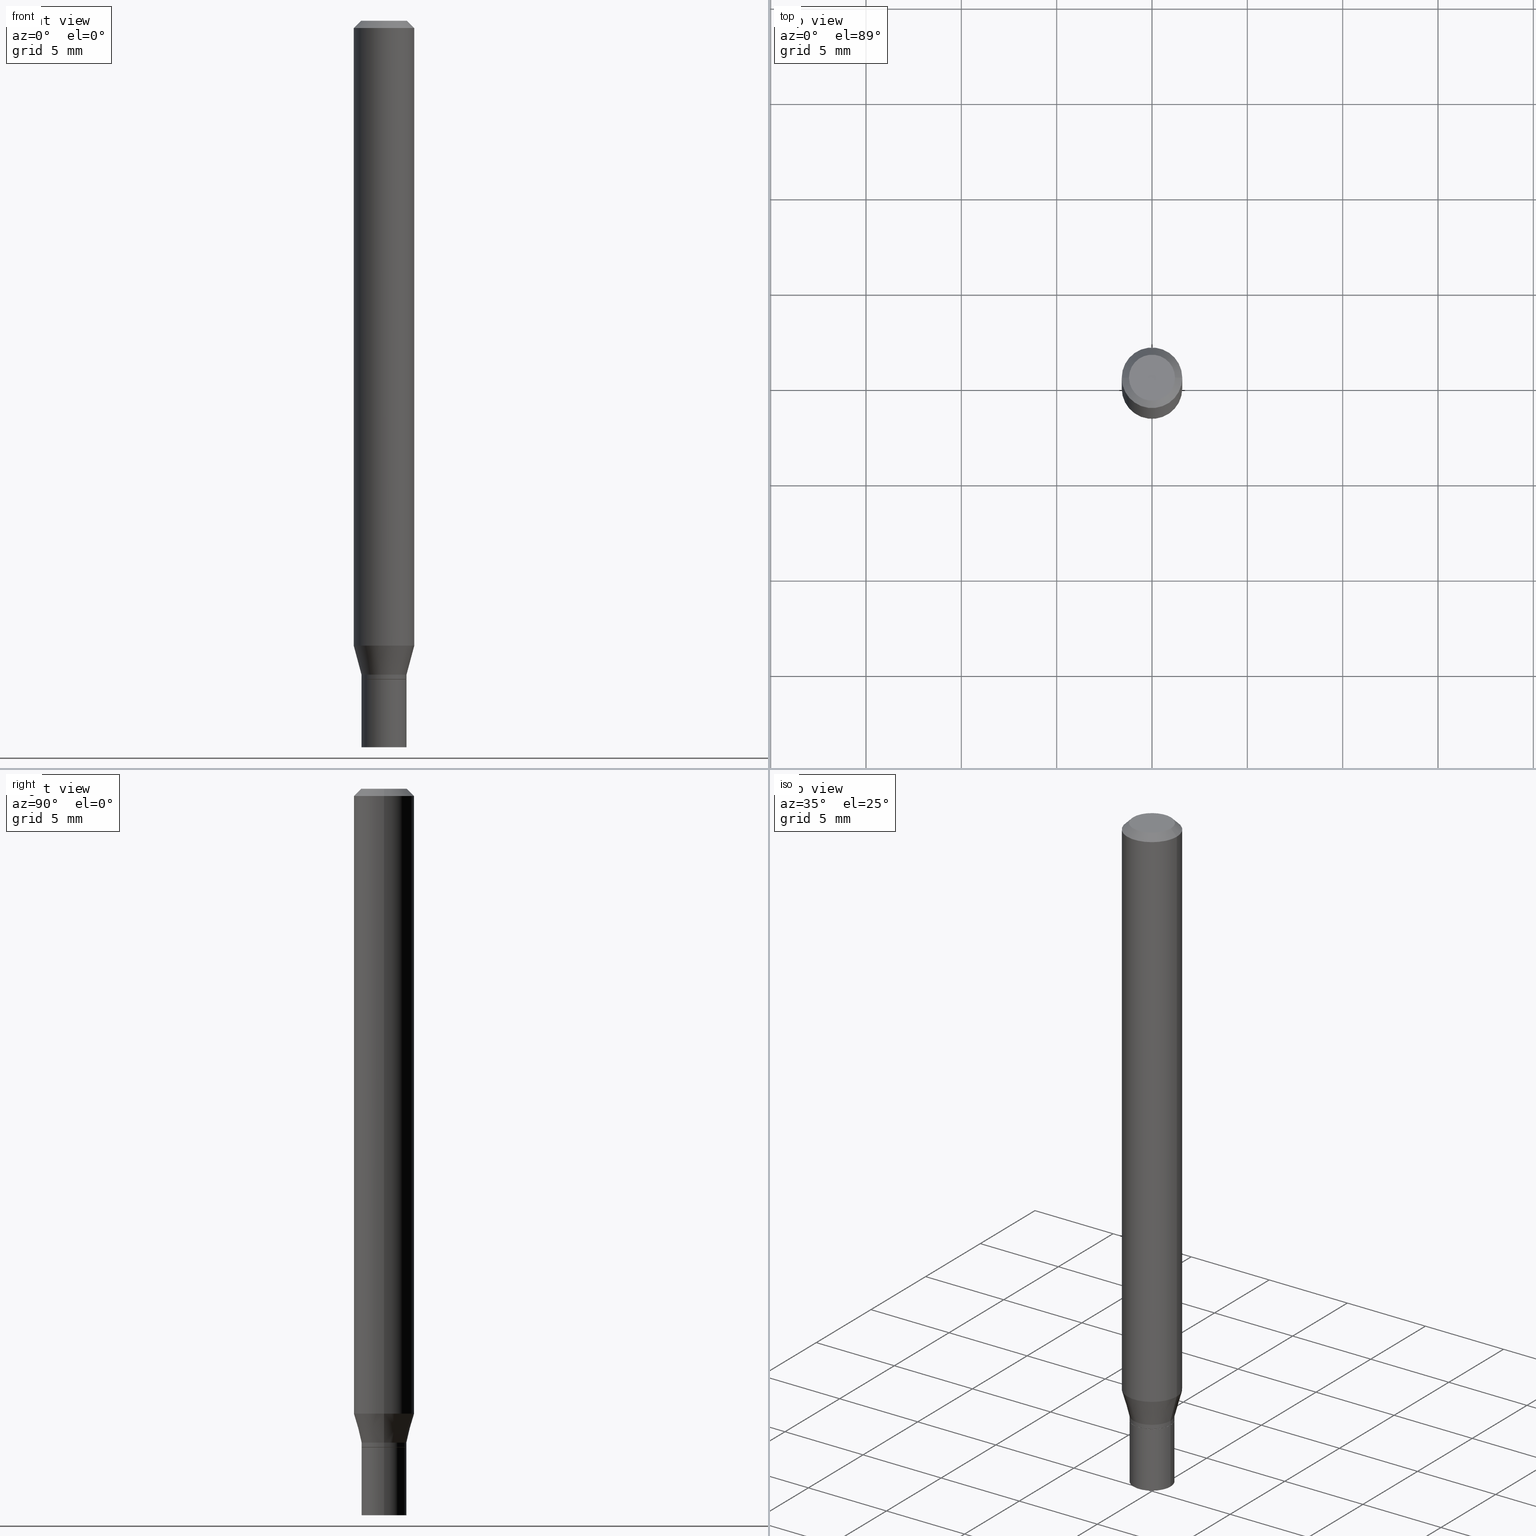
[diagram: canonical four-view strip — front | top / right | iso, engineering-drawing reading convention]
A machine part, canonical four-view strip (front | top / right | iso — engineering-drawing reading convention). The complete STEP part file that produces these views, byte-faithful:
ISO-10303-21;
HEADER;
FILE_DESCRIPTION (( 'STEP AP203' ),
    '1' );
FILE_NAME ('00435.STEP',
    '2024-03-19T21:17:44',
    ( '' ),
    ( '' ),
    'SwSTEP 2.0',
    'SolidWorks 2023',
    '' );
FILE_SCHEMA (( 'CONFIG_CONTROL_DESIGN' ));
ENDSEC;

DATA;
#1 = AXIS2_PLACEMENT_3D ( 'NONE', #385, #238, #11 ) ;
#2 = ORIENTED_EDGE ( 'NONE', *, *, #316, .F. ) ;
#3 = DIRECTION ( 'NONE',  ( -2.445468806185136597E-29, 3.491481338843145583E-15, 1.000000000000000000 ) ) ;
#4 = PERSON_AND_ORGANIZATION ( #232, #430 ) ;
#5 = CARTESIAN_POINT ( 'NONE',  ( 3.325837576411786624E-29, -4.748414620826679034E-15, -1.360000000000000320 ) ) ;
#6 = CARTESIAN_POINT ( 'NONE',  ( 3.324614842008693822E-29, -4.746668880157257530E-15, -1.359500000000000375 ) ) ;
#7 = LENGTH_MEASURE_WITH_UNIT ( LENGTH_MEASURE( 0.02539999999999999897 ), #434 );
#8 = FACE_OUTER_BOUND ( 'NONE', #206, .T. ) ;
#9 = PERSON_AND_ORGANIZATION_ROLE ( 'design_supplier' ) ;
#10 = EDGE_CURVE ( 'NONE', #72, #251, #38, .T. ) ;
#11 = DIRECTION ( 'NONE',  ( 1.000000000000000000, -6.982962677686266711E-15, 4.876176775795935793E-29 ) ) ;
#12 = PERSON_AND_ORGANIZATION_ROLE ( 'classification_officer' ) ;
#13 = CIRCLE ( 'NONE', #16, 0.04749999999999999362 ) ;
#14 = APPROVAL_PERSON_ORGANIZATION ( #86, #203, #93 ) ;
#15 = ORIENTED_EDGE ( 'NONE', *, *, #212, .F. ) ;
#16 = AXIS2_PLACEMENT_3D ( 'NONE', #105, #32, #35 ) ;
#17 = DIRECTION ( 'NONE',  ( -2.445468806185136597E-29, 3.491481338843145583E-15, 1.000000000000000000 ) ) ;
#18 = CC_DESIGN_PERSON_AND_ORGANIZATION_ASSIGNMENT ( #306, #12, ( #82 ) ) ;
#19 = VERTEX_POINT ( 'NONE', #70 ) ;
#20 = ORIENTED_EDGE ( 'NONE', *, *, #338, .T. ) ;
#21 = DIRECTION ( 'NONE',  ( 1.000000000000000000, -6.982962677686267499E-15, 4.876176775795935793E-29 ) ) ;
#22 = DIRECTION ( 'NONE',  ( -1.000000000000000000, 6.982962677686266711E-15, 0.000000000000000000 ) ) ;
#23 = ORIENTED_EDGE ( 'NONE', *, *, #356, .T. ) ;
#24 = AXIS2_PLACEMENT_3D ( 'NONE', #392, #214, #289 ) ;
#25 = AXIS2_PLACEMENT_3D ( 'NONE', #57, #196, #21 ) ;
#26 = DIRECTION ( 'NONE',  ( -2.445468806185136597E-29, 3.491481338843145583E-15, 1.000000000000000000 ) ) ;
#27 = CARTESIAN_POINT ( 'NONE',  ( -0.04649999999999992334, -4.222010930447061653E-15, -1.350000000000000089 ) ) ;
#28 = VERTEX_POINT ( 'NONE', #328 ) ;
#29 = CARTESIAN_POINT ( 'NONE',  ( 0.04599999999999999922, -5.069630904000247523E-15, -1.360000000000000320 ) ) ;
#30 = CALENDAR_DATE ( 2024, 19, 3 ) ;
#31 = ORIENTED_EDGE ( 'NONE', *, *, #356, .F. ) ;
#32 = DIRECTION ( 'NONE',  ( -2.445468806185136597E-29, 3.491481338843145583E-15, 1.000000000000000000 ) ) ;
#33 = ADVANCED_FACE ( 'NONE', ( #324 ), #435, .T. ) ;
#34 = DIRECTION ( 'NONE',  ( -2.445468806185136877E-29, 3.491481338843145188E-15, 1.000000000000000000 ) ) ;
#35 = DIRECTION ( 'NONE',  ( 1.000000000000000000, -6.982962677686267499E-15, 4.884662768193073002E-29 ) ) ;
#36 = CC_DESIGN_PERSON_AND_ORGANIZATION_ASSIGNMENT ( #431, #108, ( #190 ) ) ;
#37 = CIRCLE ( 'NONE', #44, 0.04649999999999999967 ) ;
#38 = LINE ( 'NONE', #177, #440 ) ;
#39 = EDGE_CURVE ( 'NONE', #270, #54, #175, .T. ) ;
#40 = DIRECTION ( 'NONE',  ( -2.445468806185136597E-29, 3.491481338843145583E-15, 1.000000000000000000 ) ) ;
#41 = PRODUCT_RELATED_PRODUCT_CATEGORY ( 'detail', '', ( #295 ) ) ;
#42 =( NAMED_UNIT ( * ) PLANE_ANGLE_UNIT ( ) SI_UNIT ( $, .RADIAN. ) );
#43 = AXIS2_PLACEMENT_3D ( 'NONE', #257, #40, #179 ) ;
#44 = AXIS2_PLACEMENT_3D ( 'NONE', #411, #85, #50 ) ;
#45 = CARTESIAN_POINT ( 'NONE',  ( 0.000000000000000000, 0.000000000000000000, 0.000000000000000000 ) ) ;
#46 = FACE_OUTER_BOUND ( 'NONE', #273, .T. ) ;
#47 = DIRECTION ( 'NONE',  ( 0.000000000000000000, 0.000000000000000000, 1.000000000000000000 ) ) ;
#48 = DIRECTION ( 'NONE',  ( -2.445468806185136877E-29, 3.491481338843145188E-15, 1.000000000000000000 ) ) ;
#49 = CIRCLE ( 'NONE', #89, 0.06250000000000000000 ) ;
#50 = DIRECTION ( 'NONE',  ( 1.000000000000000000, -6.982962677686260400E-15, 0.000000000000000000 ) ) ;
#51 = EDGE_CURVE ( 'NONE', #59, #167, #103, .T. ) ;
#52 = CARTESIAN_POINT ( 'NONE',  ( -2.121106073929386760E-45, 3.028377322213383622E-31, 8.673617379884936499E-17 ) ) ;
#53 = DIRECTION ( 'NONE',  ( 1.000000000000000000, -6.982962677686267499E-15, 4.876176775795936353E-29 ) ) ;
#54 = VERTEX_POINT ( 'NONE', #290 ) ;
#55 = AXIS2_PLACEMENT_3D ( 'NONE', #182, #110, #326 ) ;
#56 = CIRCLE ( 'NONE', #321, 0.04649999999999992334 ) ;
#57 = CARTESIAN_POINT ( 'NONE',  ( 0.000000000000000000, 0.000000000000000000, 0.000000000000000000 ) ) ;
#58 = ORIENTED_EDGE ( 'NONE', *, *, #153, .T. ) ;
#59 = VERTEX_POINT ( 'NONE', #398 ) ;
#60 = CARTESIAN_POINT ( 'NONE',  ( 3.301382888349935078E-29, -4.713499807438246596E-15, -1.350000000000000089 ) ) ;
#61 = LOCAL_TIME ( 17, 17, 44.00000000000000000, #317 ) ;
#62 = DIRECTION ( 'NONE',  ( 2.445468806185136597E-29, -3.491481338843145583E-15, -1.000000000000000000 ) ) ;
#63 = ORIENTED_EDGE ( 'NONE', *, *, #67, .T. ) ;
#64 = PLANE ( 'NONE',  #345 ) ;
#65 = VERTEX_POINT ( 'NONE', #288 ) ;
#66 = VECTOR ( 'NONE', #268, 39.37007874015748143 ) ;
#67 = EDGE_CURVE ( 'NONE', #251, #54, #75, .T. ) ;
#68 = CARTESIAN_POINT ( 'NONE',  ( 3.325837576411786624E-29, -4.748414620826679034E-15, -1.360000000000000320 ) ) ;
#69 = DATE_AND_TIME ( #337, #391 ) ;
#70 = CARTESIAN_POINT ( 'NONE',  ( 0.04649999999999992334, -5.038207571950657304E-15, -1.350000000000000089 ) ) ;
#71 = LINE ( 'NONE', #363, #439 ) ;
#72 = VERTEX_POINT ( 'NONE', #464 ) ;
#73 = AXIS2_PLACEMENT_3D ( 'NONE', #113, #118, #53 ) ;
#74 = CC_DESIGN_SECURITY_CLASSIFICATION ( #82, ( #294 ) ) ;
#75 = CIRCLE ( 'NONE', #426, 0.04649999999999999967 ) ;
#76 = DIRECTION ( 'NONE',  ( 1.000000000000000000, -6.982962677686266711E-15, 4.876176775795935793E-29 ) ) ;
#77 = EDGE_CURVE ( 'NONE', #215, #233, #381, .T. ) ;
#78 = PERSON_AND_ORGANIZATION ( #232, #430 ) ;
#79 = DIRECTION ( 'NONE',  ( 1.000000000000000000, -6.982962677686267499E-15, 4.876176775795935793E-29 ) ) ;
#80 = APPLICATION_PROTOCOL_DEFINITION ( 'international standard', 'config_control_design', 1994, #443 ) ;
#81 = DIRECTION ( 'NONE',  ( 1.000000000000000000, -6.982962677686271444E-15, 0.000000000000000000 ) ) ;
#82 = SECURITY_CLASSIFICATION ( '', '', #303 ) ;
#83 = DATE_TIME_ROLE ( 'creation_date' ) ;
#84 = DIRECTION ( 'NONE',  ( 1.000000000000000000, -6.982962677686267499E-15, 4.884662768193073002E-29 ) ) ;
#85 = DIRECTION ( 'NONE',  ( -2.445468806185136597E-29, 3.491481338843145583E-15, 1.000000000000000000 ) ) ;
#86 = PERSON_AND_ORGANIZATION ( #232, #430 ) ;
#87 = DIRECTION ( 'NONE',  ( -0.7071067811865454633, 2.468850131082235761E-15, -0.7071067811865493491 ) ) ;
#88 = PLANE ( 'NONE',  #24 ) ;
#89 = AXIS2_PLACEMENT_3D ( 'NONE', #104, #427, #107 ) ;
#90 = ORIENTED_EDGE ( 'NONE', *, *, #239, .T. ) ;
#91 = ORIENTED_EDGE ( 'NONE', *, *, #282, .F. ) ;
#92 = DIRECTION ( 'NONE',  ( -2.445468806185136597E-29, 3.491481338843145583E-15, 1.000000000000000000 ) ) ;
#93 = APPROVAL_ROLE ( '' ) ;
#94 = EDGE_LOOP ( 'NONE', ( #132, #377, #269, #455 ) ) ;
#95 = EDGE_LOOP ( 'NONE', ( #342, #23, #106, #91 ) ) ;
#96 = DIRECTION ( 'NONE',  ( 1.000000000000000000, -6.982962677686271444E-15, 0.000000000000000000 ) ) ;
#97 = LINE ( 'NONE', #145, #456 ) ;
#98 = EDGE_LOOP ( 'NONE', ( #272, #255, #241, #285 ) ) ;
#99 = ADVANCED_FACE ( 'NONE', ( #364 ), #260, .T. ) ;
#100 = MANIFOLD_SOLID_BREP ( 'Body-Move/Copy2[1]', #261 ) ;
#101 = CIRCLE ( 'NONE', #367, 0.04649999999999992334 ) ;
#102 = CIRCLE ( 'NONE', #375, 0.06250000000000000000 ) ;
#103 = CIRCLE ( 'NONE', #384, 0.04599999999999999922 ) ;
#104 = CARTESIAN_POINT ( 'NONE',  ( 3.155357067021810045E-29, -4.505013635434385811E-15, -1.290287187078897668 ) ) ;
#105 = CARTESIAN_POINT ( 'NONE',  ( -2.121106073929386760E-45, 3.028377322213383622E-31, 8.673617379884936499E-17 ) ) ;
#106 = ORIENTED_EDGE ( 'NONE', *, *, #216, .F. ) ;
#107 = DIRECTION ( 'NONE',  ( 1.000000000000000000, -6.982962677686262766E-15, 0.000000000000000000 ) ) ;
#108 = PERSON_AND_ORGANIZATION_ROLE ( 'creator' ) ;
#109 = ORIENTED_EDGE ( 'NONE', *, *, #421, .T. ) ;
#110 = DIRECTION ( 'NONE',  ( -2.445468806185136597E-29, 3.491481338843145583E-15, 1.000000000000000000 ) ) ;
#111 = ADVANCED_FACE ( 'NONE', ( #46 ), #187, .T. ) ;
#112 = DIRECTION ( 'NONE',  ( -2.445468806185136597E-29, 3.491481338843145583E-15, 1.000000000000000000 ) ) ;
#113 = CARTESIAN_POINT ( 'NONE',  ( 0.000000000000000000, 0.000000000000000000, 0.000000000000000000 ) ) ;
#114 = AXIS2_PLACEMENT_3D ( 'NONE', #323, #154, #307 ) ;
#115 = CIRCLE ( 'NONE', #200, 0.04749999999999999362 ) ;
#116 = CYLINDRICAL_SURFACE ( 'NONE', #160, 0.04649999999999992334 ) ;
#117 = DIRECTION ( 'NONE',  ( 0.7071067811865454633, -7.319954787623246579E-15, -0.7071067811865493491 ) ) ;
#118 = DIRECTION ( 'NONE',  ( -2.445468806185136597E-29, 3.491481338843145583E-15, 1.000000000000000000 ) ) ;
#119 = ADVANCED_BREP_SHAPE_REPRESENTATION ( '00435', ( #100, #425, #122 ), #236 ) ;
#120 = APPROVAL_ROLE ( '' ) ;
#121 = FACE_OUTER_BOUND ( 'NONE', #95, .T. ) ;
#122 = AXIS2_PLACEMENT_3D ( 'NONE', #368, #47, #188 ) ;
#123 = CONICAL_SURFACE ( 'NONE', #209, 0.04599999999999999922, 0.7853981633974739252 ) ;
#124 = EDGE_LOOP ( 'NONE', ( #2, #267, #449, #237 ) ) ;
#125 = LINE ( 'NONE', #302, #66 ) ;
#126 = CARTESIAN_POINT ( 'NONE',  ( 0.06250000000000000000, -4.364351673553916694E-16, 3.047610484872459871E-30 ) ) ;
#127 = ADVANCED_FACE ( 'NONE', ( #389 ), #64, .F. ) ;
#128 = ORIENTED_EDGE ( 'NONE', *, *, #316, .T. ) ;
#129 = ORIENTED_EDGE ( 'NONE', *, *, #421, .F. ) ;
#130 = FACE_OUTER_BOUND ( 'NONE', #310, .T. ) ;
#131 = CALENDAR_DATE ( 2024, 19, 3 ) ;
#132 = ORIENTED_EDGE ( 'NONE', *, *, #142, .F. ) ;
#133 = DIRECTION ( 'NONE',  ( -2.438088387897960049E-29, 3.491481338843145188E-15, 1.000000000000000000 ) ) ;
#134 = CARTESIAN_POINT ( 'NONE',  ( 3.325837576411786624E-29, -4.748414620826679034E-15, -1.360000000000000320 ) ) ;
#135 = EDGE_CURVE ( 'NONE', #211, #395, #13, .T. ) ;
#136 = CARTESIAN_POINT ( 'NONE',  ( 3.668203209277705088E-31, -5.237222008264718399E-17, -0.01499999999999999944 ) ) ;
#137 = COORDINATED_UNIVERSAL_TIME_OFFSET ( 5, 0, .BEHIND. ) ;
#138 = CIRCLE ( 'NONE', #403, 0.06250000000000000000 ) ;
#139 = AXIS2_PLACEMENT_3D ( 'NONE', #155, #17, #416 ) ;
#140 = CIRCLE ( 'NONE', #159, 0.04649999999999999967 ) ;
#141 = DIRECTION ( 'NONE',  ( -2.445468806185136597E-29, 3.491481338843145583E-15, 1.000000000000000000 ) ) ;
#142 = EDGE_CURVE ( 'NONE', #59, #215, #429, .T. ) ;
#143 = CC_DESIGN_PERSON_AND_ORGANIZATION_ASSIGNMENT ( #197, #9, ( #294 ) ) ;
#144 = DIRECTION ( 'NONE',  ( -2.445468806185136877E-29, 3.491481338843145188E-15, 1.000000000000000000 ) ) ;
#145 = CARTESIAN_POINT ( 'NONE',  ( -0.06250000000000000000, 4.440892098500626162E-16, -3.074334431409316114E-30 ) ) ;
#146 = CARTESIAN_POINT ( 'NONE',  ( 3.325837576411786624E-29, -4.748414620826679034E-15, -1.360000000000000320 ) ) ;
#147 = VECTOR ( 'NONE', #180, 39.37007874015748143 ) ;
#148 = DIRECTION ( 'NONE',  ( -2.445468806185136597E-29, 3.491481338843145583E-15, 1.000000000000000000 ) ) ;
#149 = PRODUCT_DEFINITION_SHAPE ( 'NONE', 'NONE',  #190 ) ;
#150 = ADVANCED_FACE ( 'NONE', ( #322 ), #362, .T. ) ;
#151 = CARTESIAN_POINT ( 'NONE',  ( 3.668203209277705088E-31, -5.237222008264718399E-17, -0.01499999999999999944 ) ) ;
#152 = DIRECTION ( 'NONE',  ( 1.000000000000000000, -6.982962677686269866E-15, 0.000000000000000000 ) ) ;
#153 = EDGE_CURVE ( 'NONE', #400, #19, #101, .T. ) ;
#154 = DIRECTION ( 'NONE',  ( -2.445468806185136597E-29, 3.491481338843145583E-15, 1.000000000000000000 ) ) ;
#155 = CARTESIAN_POINT ( 'NONE',  ( 3.301382888349935078E-29, -4.713499807438246596E-15, -1.350000000000000089 ) ) ;
#156 = APPROVAL ( #370, 'UNSPECIFIED' ) ;
#157 = CARTESIAN_POINT ( 'NONE',  ( 3.316907271900976096E-16, 0.04749999999999999362, -1.224772766956247324E-16 ) ) ;
#158 = DIRECTION ( 'NONE',  ( -1.000000000000000000, 6.982962677686265922E-15, -4.876176775795935793E-29 ) ) ;
#159 = AXIS2_PLACEMENT_3D ( 'NONE', #134, #279, #353 ) ;
#160 = AXIS2_PLACEMENT_3D ( 'NONE', #45, #218, #79 ) ;
#161 = AXIS2_PLACEMENT_3D ( 'NONE', #457, #62, #22 ) ;
#162 = DIRECTION ( 'NONE',  ( -2.438088387897960049E-29, 3.491481338843145188E-15, 1.000000000000000000 ) ) ;
#163 = ADVANCED_FACE ( 'NONE', ( #242 ), #221, .T. ) ;
#164 = APPROVAL_STATUS ( 'not_yet_approved' ) ;
#165 = ORIENTED_EDGE ( 'NONE', *, *, #10, .F. ) ;
#166 = ORIENTED_EDGE ( 'NONE', *, *, #223, .T. ) ;
#167 = VERTEX_POINT ( 'NONE', #314 ) ;
#168 = CARTESIAN_POINT ( 'NONE',  ( 3.301382888349935078E-29, -4.713499807438246596E-15, -1.350000000000000089 ) ) ;
#169 = EDGE_CURVE ( 'NONE', #54, #251, #140, .T. ) ;
#170 = ORIENTED_EDGE ( 'NONE', *, *, #465, .F. ) ;
#171 = ORIENTED_EDGE ( 'NONE', *, *, #380, .F. ) ;
#172 = APPLICATION_CONTEXT ( 'configuration controlled 3d designs of mechanical parts and assemblies' ) ;
#173 = ORIENTED_EDGE ( 'NONE', *, *, #212, .T. ) ;
#174 = CARTESIAN_POINT ( 'NONE',  ( -0.04599999999999999922, -4.421564962377032658E-15, -1.360000000000000320 ) ) ;
#175 = LINE ( 'NONE', #320, #343 ) ;
#176 = AXIS2_PLACEMENT_3D ( 'NONE', #146, #293, #432 ) ;
#177 = CARTESIAN_POINT ( 'NONE',  ( -0.04649999999999999967, 3.304023721284465841E-16, -2.287304816968531530E-30 ) ) ;
#178 = UNCERTAINTY_MEASURE_WITH_UNIT (LENGTH_MEASURE( 1.000000000000000082E-05 ), #186, 'distance_accuracy_value', 'NONE');
#179 = DIRECTION ( 'NONE',  ( 1.000000000000000000, -6.982962677686271444E-15, 0.000000000000000000 ) ) ;
#180 = DIRECTION ( 'NONE',  ( 0.7071067811865656694, -2.468850131082446387E-15, 0.7071067811865294761 ) ) ;
#181 = CALENDAR_DATE ( 2024, 19, 3 ) ;
#182 = CARTESIAN_POINT ( 'NONE',  ( 0.000000000000000000, 0.000000000000000000, 0.000000000000000000 ) ) ;
#183 = EDGE_CURVE ( 'NONE', #167, #233, #423, .T. ) ;
#184 = CONICAL_SURFACE ( 'NONE', #139, 0.04649999999999992334, 0.2617993877991490193 ) ;
#185 = AXIS2_PLACEMENT_3D ( 'NONE', #330, #404, #76 ) ;
#186 =( CONVERSION_BASED_UNIT ( 'INCH', #7 ) LENGTH_UNIT ( ) NAMED_UNIT ( #312 ) );
#187 = CYLINDRICAL_SURFACE ( 'NONE', #185, 0.06250000000000000000 ) ;
#188 = DIRECTION ( 'NONE',  ( 1.000000000000000000, 0.000000000000000000, 0.000000000000000000 ) ) ;
#189 = FACE_OUTER_BOUND ( 'NONE', #453, .T. ) ;
#190 = PRODUCT_DEFINITION ( 'UNKNOWN', '', #294, #351 ) ;
#191 = CALENDAR_DATE ( 2024, 19, 3 ) ;
#192 = DIRECTION ( 'NONE',  ( 1.000000000000000000, -6.982962677686266711E-15, 0.000000000000000000 ) ) ;
#193 = CYLINDRICAL_SURFACE ( 'NONE', #25, 0.04649999999999992334 ) ;
#194 = CIRCLE ( 'NONE', #266, 0.04599999999999999922 ) ;
#195 = COORDINATED_UNIVERSAL_TIME_OFFSET ( 5, 0, .BEHIND. ) ;
#196 = DIRECTION ( 'NONE',  ( -2.445468806185136597E-29, 3.491481338843145583E-15, 1.000000000000000000 ) ) ;
#197 = PERSON_AND_ORGANIZATION ( #232, #430 ) ;
#198 = ADVANCED_FACE ( 'NONE', ( #189 ), #433, .T. ) ;
#199 = CARTESIAN_POINT ( 'NONE',  ( 3.576687321579069994E-29, -5.368277968210015545E-15, -1.500000000000000222 ) ) ;
#200 = AXIS2_PLACEMENT_3D ( 'NONE', #52, #92, #84 ) ;
#201 = ORIENTED_EDGE ( 'NONE', *, *, #135, .F. ) ;
#202 = DIRECTION ( 'NONE',  ( 0.2588190451025203509, 1.565188264969630053E-15, 0.9659258262890684232 ) ) ;
#203 = APPROVAL ( #164, 'UNSPECIFIED' ) ;
#204 = EDGE_LOOP ( 'NONE', ( #165, #315, #379, #250 ) ) ;
#205 = DIRECTION ( 'NONE',  ( -0.7071067811865656694, 7.493145998870420424E-15, 0.7071067811865294761 ) ) ;
#206 = EDGE_LOOP ( 'NONE', ( #415, #90 ) ) ;
#207 = DIRECTION ( 'NONE',  ( -2.445468806185136597E-29, 3.491481338843145583E-15, 1.000000000000000000 ) ) ;
#208 = AXIS2_PLACEMENT_3D ( 'NONE', #151, #264, #228 ) ;
#209 = AXIS2_PLACEMENT_3D ( 'NONE', #234, #341, #382 ) ;
#210 = ORIENTED_EDGE ( 'NONE', *, *, #447, .T. ) ;
#211 = VERTEX_POINT ( 'NONE', #412 ) ;
#212 = EDGE_CURVE ( 'NONE', #19, #400, #56, .T. ) ;
#213 = LINE ( 'NONE', #253, #246 ) ;
#214 = DIRECTION ( 'NONE',  ( 2.438088387897960049E-29, -3.491481338843145188E-15, -1.000000000000000000 ) ) ;
#215 = VERTEX_POINT ( 'NONE', #458 ) ;
#216 = EDGE_CURVE ( 'NONE', #65, #28, #138, .T. ) ;
#217 = ORIENTED_EDGE ( 'NONE', *, *, #51, .F. ) ;
#218 = DIRECTION ( 'NONE',  ( -2.445468806185136597E-29, 3.491481338843145583E-15, 1.000000000000000000 ) ) ;
#219 = EDGE_LOOP ( 'NONE', ( #249, #63 ) ) ;
#220 = LOCAL_TIME ( 17, 17, 44.00000000000000000, #137 ) ;
#221 = CONICAL_SURFACE ( 'NONE', #286, 0.04649999999999992334, 0.2617993877991490193 ) ;
#222 = LINE ( 'NONE', #360, #284 ) ;
#223 = EDGE_CURVE ( 'NONE', #19, #419, #213, .T. ) ;
#224 =( NAMED_UNIT ( * ) SI_UNIT ( $, .STERADIAN. ) SOLID_ANGLE_UNIT ( ) );
#225 = MECHANICAL_CONTEXT ( 'NONE', #443, 'mechanical' ) ;
#226 = PLANE ( 'NONE',  #365 ) ;
#227 = LOCAL_TIME ( 17, 17, 44.00000000000000000, #399 ) ;
#228 = DIRECTION ( 'NONE',  ( -1.000000000000000000, 6.982962677686266711E-15, 0.000000000000000000 ) ) ;
#229 = FACE_OUTER_BOUND ( 'NONE', #311, .T. ) ;
#230 = ORIENTED_EDGE ( 'NONE', *, *, #338, .F. ) ;
#231 = FACE_OUTER_BOUND ( 'NONE', #278, .T. ) ;
#232 = PERSON ( 'UNSPECIFIED', 'UNSPECIFIED', 'UNSPECIFIED', ('UNSPECIFIED'), ('UNSPECIFIED'), ('UNSPECIFIED') ) ;
#233 = VERTEX_POINT ( 'NONE', #344 ) ;
#234 = CARTESIAN_POINT ( 'NONE',  ( 3.325837576411786624E-29, -4.748414620826679034E-15, -1.360000000000000320 ) ) ;
#235 = APPROVAL_PERSON_ORGANIZATION ( #4, #291, #374 ) ;
#236 =( GEOMETRIC_REPRESENTATION_CONTEXT ( 3 ) GLOBAL_UNCERTAINTY_ASSIGNED_CONTEXT ( ( #178 ) ) GLOBAL_UNIT_ASSIGNED_CONTEXT ( ( #186, #42, #224 ) ) REPRESENTATION_CONTEXT ( 'NONE', 'WORKASPACE' ) );
#237 = ORIENTED_EDGE ( 'NONE', *, *, #153, .F. ) ;
#238 = DIRECTION ( 'NONE',  ( -2.445468806185136597E-29, 3.491481338843145583E-15, 1.000000000000000000 ) ) ;
#239 = EDGE_CURVE ( 'NONE', #395, #211, #115, .T. ) ;
#240 = APPROVAL_DATE_TIME ( #417, #203 ) ;
#241 = ORIENTED_EDGE ( 'NONE', *, *, #216, .T. ) ;
#242 = FACE_OUTER_BOUND ( 'NONE', #354, .T. ) ;
#243 = DIRECTION ( 'NONE',  ( 1.000000000000000000, -6.982962677686271444E-15, 0.000000000000000000 ) ) ;
#244 = EDGE_LOOP ( 'NONE', ( #20, #128, #15, #170 ) ) ;
#245 = CLOSED_SHELL ( 'NONE', ( #461, #254, #150, #263, #163, #301, #111, #373, #298, #127, #99, #247 ) ) ;
#246 = VECTOR ( 'NONE', #202, 39.37007874015748143 ) ;
#247 = ADVANCED_FACE ( 'NONE', ( #407 ), #193, .T. ) ;
#248 = CARTESIAN_POINT ( 'NONE',  ( 0.04749999999999999362, -4.035134999187577144E-16, 8.673617379885194112E-17 ) ) ;
#249 = ORIENTED_EDGE ( 'NONE', *, *, #169, .T. ) ;
#250 = ORIENTED_EDGE ( 'NONE', *, *, #67, .F. ) ;
#251 = VERTEX_POINT ( 'NONE', #265 ) ;
#252 = CONICAL_SURFACE ( 'NONE', #208, 0.06250000000000000000, 0.7853981633974456145 ) ;
#253 = CARTESIAN_POINT ( 'NONE',  ( 0.04649999999999992334, -5.038207571950657304E-15, -1.350000000000000089 ) ) ;
#254 = ADVANCED_FACE ( 'NONE', ( #229 ), #123, .T. ) ;
#255 = ORIENTED_EDGE ( 'NONE', *, *, #309, .T. ) ;
#256 = CARTESIAN_POINT ( 'NONE',  ( -0.06250000000000000000, -4.060924425584323195E-15, -1.290287187078897668 ) ) ;
#257 = CARTESIAN_POINT ( 'NONE',  ( 3.324614842008693822E-29, -4.746668880157257530E-15, -1.359500000000000375 ) ) ;
#258 = FACE_OUTER_BOUND ( 'NONE', #244, .T. ) ;
#259 = ORIENTED_EDGE ( 'NONE', *, *, #39, .F. ) ;
#260 = CONICAL_SURFACE ( 'NONE', #176, 0.04599999999999999922, 0.7853981633974739252 ) ;
#261 = CLOSED_SHELL ( 'NONE', ( #198, #348, #33, #352 ) ) ;
#262 = PERSON_AND_ORGANIZATION_ROLE ( 'design_owner' ) ;
#263 = ADVANCED_FACE ( 'NONE', ( #121 ), #339, .T. ) ;
#264 = DIRECTION ( 'NONE',  ( 2.445468806185136597E-29, -3.491481338843145583E-15, -1.000000000000000000 ) ) ;
#265 = CARTESIAN_POINT ( 'NONE',  ( -0.04649999999999999967, -4.662415942417251725E-15, -1.360000000000000320 ) ) ;
#266 = AXIS2_PLACEMENT_3D ( 'NONE', #5, #3, #152 ) ;
#267 = ORIENTED_EDGE ( 'NONE', *, *, #77, .T. ) ;
#268 = DIRECTION ( 'NONE',  ( -2.445468806185136877E-29, 3.491481338843145188E-15, 1.000000000000000000 ) ) ;
#269 = ORIENTED_EDGE ( 'NONE', *, *, #183, .T. ) ;
#270 = VERTEX_POINT ( 'NONE', #378 ) ;
#271 = CC_DESIGN_PERSON_AND_ORGANIZATION_ASSIGNMENT ( #436, #262, ( #295 ) ) ;
#272 = ORIENTED_EDGE ( 'NONE', *, *, #239, .F. ) ;
#273 = EDGE_LOOP ( 'NONE', ( #31, #387, #450, #394 ) ) ;
#274 = ORIENTED_EDGE ( 'NONE', *, *, #454, .T. ) ;
#275 = CC_DESIGN_DATE_AND_TIME_ASSIGNMENT ( #413, #277, ( #82 ) ) ;
#276 = DIRECTION ( 'NONE',  ( 1.000000000000000000, -6.982962677686265922E-15, 4.876176775795935793E-29 ) ) ;
#277 = DATE_TIME_ROLE ( 'classification_date' ) ;
#278 = EDGE_LOOP ( 'NONE', ( #388, #361 ) ) ;
#279 = DIRECTION ( 'NONE',  ( -2.445468806185136597E-29, 3.491481338843145583E-15, 1.000000000000000000 ) ) ;
#280 = LINE ( 'NONE', #325, #466 ) ;
#281 = ORIENTED_EDGE ( 'NONE', *, *, #142, .T. ) ;
#282 = EDGE_CURVE ( 'NONE', #419, #65, #336, .T. ) ;
#283 = VECTOR ( 'NONE', #205, 39.37007874015748143 ) ;
#284 = VECTOR ( 'NONE', #327, 39.37007874015748143 ) ;
#285 = ORIENTED_EDGE ( 'NONE', *, *, #396, .F. ) ;
#286 = AXIS2_PLACEMENT_3D ( 'NONE', #60, #207, #349 ) ;
#287 = DIRECTION ( 'NONE',  ( 1.000000000000000000, -6.982962677686266711E-15, 0.000000000000000000 ) ) ;
#288 = CARTESIAN_POINT ( 'NONE',  ( 0.06250000000000000000, -4.888073874380388472E-16, -0.01499999999999999944 ) ) ;
#289 = DIRECTION ( 'NONE',  ( -1.000000000000000000, 6.982962677686265922E-15, -4.876176775795935793E-29 ) ) ;
#290 = CARTESIAN_POINT ( 'NONE',  ( 0.04649999999999999967, -5.073122385339090530E-15, -1.360000000000000320 ) ) ;
#291 = APPROVAL ( #371, 'UNSPECIFIED' ) ;
#292 = APPROVAL_DATE_TIME ( #69, #291 ) ;
#293 = DIRECTION ( 'NONE',  ( -2.445468806185136597E-29, 3.491481338843145583E-15, 1.000000000000000000 ) ) ;
#294 = PRODUCT_DEFINITION_FORMATION_WITH_SPECIFIED_SOURCE ( 'ANY', '', #295, .NOT_KNOWN. ) ;
#295 = PRODUCT ( '00435', '00435', '', ( #225 ) ) ;
#296 = DIRECTION ( 'NONE',  ( -2.445468806185136597E-29, 3.491481338843145583E-15, 1.000000000000000000 ) ) ;
#297 = ORIENTED_EDGE ( 'NONE', *, *, #396, .T. ) ;
#298 = ADVANCED_FACE ( 'NONE', ( #8 ), #446, .F. ) ;
#299 = LOCAL_TIME ( 17, 17, 44.00000000000000000, #408 ) ;
#300 = CC_DESIGN_PERSON_AND_ORGANIZATION_ASSIGNMENT ( #376, #340, ( #294 ) ) ;
#301 = ADVANCED_FACE ( 'NONE', ( #130 ), #184, .T. ) ;
#302 = CARTESIAN_POINT ( 'NONE',  ( -0.04649999999999992334, 3.304023721284460417E-16, -2.287304816968527677E-30 ) ) ;
#303 = SECURITY_CLASSIFICATION_LEVEL ( 'unclassified' ) ;
#304 = CARTESIAN_POINT ( 'NONE',  ( 0.06250000000000000000, -4.811533449433679005E-16, -0.01499999999999999944 ) ) ;
#305 = CIRCLE ( 'NONE', #114, 0.04649999999999999967 ) ;
#306 = PERSON_AND_ORGANIZATION ( #232, #430 ) ;
#307 = DIRECTION ( 'NONE',  ( 1.000000000000000000, -6.982962677686260400E-15, 0.000000000000000000 ) ) ;
#308 = DIRECTION ( 'NONE',  ( 1.000000000000000000, -6.982962677686265922E-15, 4.876176775795935793E-29 ) ) ;
#309 = EDGE_CURVE ( 'NONE', #395, #65, #442, .T. ) ;
#310 = EDGE_LOOP ( 'NONE', ( #129, #58, #166, #390 ) ) ;
#311 = EDGE_LOOP ( 'NONE', ( #274, #281, #230, #359 ) ) ;
#312 = DIMENSIONAL_EXPONENTS ( 1.000000000000000000, 0.000000000000000000, 0.000000000000000000, 0.000000000000000000, 0.000000000000000000, 0.000000000000000000, 0.000000000000000000 ) ;
#313 = CIRCLE ( 'NONE', #397, 0.06250000000000000000 ) ;
#314 = CARTESIAN_POINT ( 'NONE',  ( 0.04599999999999999922, -5.069630904000247523E-15, -1.360000000000000320 ) ) ;
#315 = ORIENTED_EDGE ( 'NONE', *, *, #331, .T. ) ;
#316 = EDGE_CURVE ( 'NONE', #215, #400, #125, .T. ) ;
#317 = COORDINATED_UNIVERSAL_TIME_OFFSET ( 5, 0, .BEHIND. ) ;
#318 = ORIENTED_EDGE ( 'NONE', *, *, #366, .T. ) ;
#319 = CARTESIAN_POINT ( 'NONE',  ( 3.301382888349935078E-29, -4.713499807438246596E-15, -1.350000000000000089 ) ) ;
#320 = CARTESIAN_POINT ( 'NONE',  ( 0.04649999999999999967, -3.247077645124114474E-16, 2.267422200745110326E-30 ) ) ;
#321 = AXIS2_PLACEMENT_3D ( 'NONE', #319, #26, #243 ) ;
#322 = FACE_OUTER_BOUND ( 'NONE', #98, .T. ) ;
#323 = CARTESIAN_POINT ( 'NONE',  ( 3.668203209277704895E-29, -5.237222008264718177E-15, -1.500000000000000222 ) ) ;
#324 = FACE_OUTER_BOUND ( 'NONE', #204, .T. ) ;
#325 = CARTESIAN_POINT ( 'NONE',  ( -0.06250000000000000000, 3.840629472727444916E-16, -0.01499999999999999944 ) ) ;
#326 = DIRECTION ( 'NONE',  ( 1.000000000000000000, -6.982962677686267499E-15, 4.876176775795936353E-29 ) ) ;
#327 = DIRECTION ( 'NONE',  ( -0.2588190451025203509, 5.211531920934543942E-15, 0.9659258262890684232 ) ) ;
#328 = CARTESIAN_POINT ( 'NONE',  ( -0.06250000000000000000, -1.834603717908453632E-15, -0.01499999999999999944 ) ) ;
#329 = DIRECTION ( 'NONE',  ( 1.000000000000000000, -6.982962677686262766E-15, 0.000000000000000000 ) ) ;
#330 = CARTESIAN_POINT ( 'NONE',  ( 0.000000000000000000, 0.000000000000000000, 0.000000000000000000 ) ) ;
#331 = EDGE_CURVE ( 'NONE', #72, #270, #37, .T. ) ;
#332 = APPLICATION_PROTOCOL_DEFINITION ( 'international standard', 'config_control_design', 1994, #172 ) ;
#333 = DATE_AND_TIME ( #191, #299 ) ;
#334 = DIRECTION ( 'NONE',  ( -2.445468806185136597E-29, 3.491481338843145583E-15, 1.000000000000000000 ) ) ;
#335 = CC_DESIGN_APPROVAL ( #291, ( #190 ) ) ;
#336 = LINE ( 'NONE', #126, #409 ) ;
#337 = CALENDAR_DATE ( 2024, 19, 3 ) ;
#338 = EDGE_CURVE ( 'NONE', #233, #215, #405, .T. ) ;
#339 = CYLINDRICAL_SURFACE ( 'NONE', #1, 0.06250000000000000000 ) ;
#340 = PERSON_AND_ORGANIZATION_ROLE ( 'creator' ) ;
#341 = DIRECTION ( 'NONE',  ( -2.445468806185136597E-29, 3.491481338843145583E-15, 1.000000000000000000 ) ) ;
#342 = ORIENTED_EDGE ( 'NONE', *, *, #380, .T. ) ;
#343 = VECTOR ( 'NONE', #144, 39.37007874015748143 ) ;
#344 = CARTESIAN_POINT ( 'NONE',  ( 0.04649999999999992334, -5.071376644669669027E-15, -1.359500000000000375 ) ) ;
#345 = AXIS2_PLACEMENT_3D ( 'NONE', #355, #133, #276 ) ;
#346 = SHAPE_DEFINITION_REPRESENTATION ( #149, #119 ) ;
#347 = EDGE_LOOP ( 'NONE', ( #463, #217 ) ) ;
#348 = ADVANCED_FACE ( 'NONE', ( #231 ), #226, .F. ) ;
#349 = DIRECTION ( 'NONE',  ( 1.000000000000000000, -6.982962677686271444E-15, 0.000000000000000000 ) ) ;
#350 = CC_DESIGN_APPROVAL ( #203, ( #82 ) ) ;
#351 = DESIGN_CONTEXT ( 'detailed design', #172, 'design' ) ;
#352 = ADVANCED_FACE ( 'NONE', ( #448 ), #88, .F. ) ;
#353 = DIRECTION ( 'NONE',  ( 1.000000000000000000, -6.982962677686260400E-15, 0.000000000000000000 ) ) ;
#354 = EDGE_LOOP ( 'NONE', ( #173, #109, #171, #459 ) ) ;
#355 = CARTESIAN_POINT ( 'NONE',  ( 3.325837576411786624E-29, -4.748414620826679034E-15, -1.360000000000000320 ) ) ;
#356 = EDGE_CURVE ( 'NONE', #422, #28, #97, .T. ) ;
#357 = CC_DESIGN_APPROVAL ( #156, ( #294 ) ) ;
#358 = ORIENTED_EDGE ( 'NONE', *, *, #169, .F. ) ;
#359 = ORIENTED_EDGE ( 'NONE', *, *, #183, .F. ) ;
#360 = CARTESIAN_POINT ( 'NONE',  ( -0.04649999999999992334, -4.383097435309800899E-15, -1.350000000000000089 ) ) ;
#361 = ORIENTED_EDGE ( 'NONE', *, *, #331, .F. ) ;
#362 = CONICAL_SURFACE ( 'NONE', #161, 0.06250000000000000000, 0.7853981633974456145 ) ;
#363 = CARTESIAN_POINT ( 'NONE',  ( 0.04649999999999992334, -3.247077645124109051E-16, 2.267422200745106472E-30 ) ) ;
#364 = FACE_OUTER_BOUND ( 'NONE', #94, .T. ) ;
#365 = AXIS2_PLACEMENT_3D ( 'NONE', #199, #162, #308 ) ;
#366 = EDGE_CURVE ( 'NONE', #270, #72, #305, .T. ) ;
#367 = AXIS2_PLACEMENT_3D ( 'NONE', #168, #420, #96 ) ;
#368 = CARTESIAN_POINT ( 'NONE',  ( 0.000000000000000000, 0.000000000000000000, 0.000000000000000000 ) ) ;
#369 = DIRECTION ( 'NONE',  ( -2.445468806185136877E-29, 3.491481338843145188E-15, 1.000000000000000000 ) ) ;
#370 = APPROVAL_STATUS ( 'not_yet_approved' ) ;
#371 = APPROVAL_STATUS ( 'not_yet_approved' ) ;
#372 = FACE_OUTER_BOUND ( 'NONE', #414, .T. ) ;
#373 = ADVANCED_FACE ( 'NONE', ( #372 ), #252, .T. ) ;
#374 = APPROVAL_ROLE ( '' ) ;
#375 = AXIS2_PLACEMENT_3D ( 'NONE', #393, #334, #329 ) ;
#376 = PERSON_AND_ORGANIZATION ( #232, #430 ) ;
#377 = ORIENTED_EDGE ( 'NONE', *, *, #51, .T. ) ;
#378 = CARTESIAN_POINT ( 'NONE',  ( 0.04649999999999999967, -5.561929772777129673E-15, -1.500000000000000222 ) ) ;
#379 = ORIENTED_EDGE ( 'NONE', *, *, #39, .T. ) ;
#380 = EDGE_CURVE ( 'NONE', #419, #422, #49, .T. ) ;
#381 = CIRCLE ( 'NONE', #43, 0.04649999999999992334 ) ;
#382 = DIRECTION ( 'NONE',  ( 1.000000000000000000, -6.982962677686269866E-15, 0.000000000000000000 ) ) ;
#383 = AXIS2_PLACEMENT_3D ( 'NONE', #6, #444, #81 ) ;
#384 = AXIS2_PLACEMENT_3D ( 'NONE', #462, #296, #402 ) ;
#385 = CARTESIAN_POINT ( 'NONE',  ( 0.000000000000000000, 0.000000000000000000, 0.000000000000000000 ) ) ;
#386 = CC_DESIGN_DATE_AND_TIME_ASSIGNMENT ( #452, #83, ( #190 ) ) ;
#387 = ORIENTED_EDGE ( 'NONE', *, *, #401, .T. ) ;
#388 = ORIENTED_EDGE ( 'NONE', *, *, #366, .F. ) ;
#389 = FACE_OUTER_BOUND ( 'NONE', #347, .T. ) ;
#390 = ORIENTED_EDGE ( 'NONE', *, *, #401, .F. ) ;
#391 = LOCAL_TIME ( 17, 17, 44.00000000000000000, #195 ) ;
#392 = CARTESIAN_POINT ( 'NONE',  ( 3.247077645124446289E-16, 0.04649999999999525346, -1.360000000000000542 ) ) ;
#393 = CARTESIAN_POINT ( 'NONE',  ( 3.155357067021810045E-29, -4.505013635434385811E-15, -1.290287187078897668 ) ) ;
#394 = ORIENTED_EDGE ( 'NONE', *, *, #447, .F. ) ;
#395 = VERTEX_POINT ( 'NONE', #248 ) ;
#396 = EDGE_CURVE ( 'NONE', #211, #28, #280, .T. ) ;
#397 = AXIS2_PLACEMENT_3D ( 'NONE', #406, #112, #192 ) ;
#398 = CARTESIAN_POINT ( 'NONE',  ( -0.04599999999999999922, -4.418915735202923035E-15, -1.360000000000000320 ) ) ;
#399 = COORDINATED_UNIVERSAL_TIME_OFFSET ( 5, 0, .BEHIND. ) ;
#400 = VERTEX_POINT ( 'NONE', #27 ) ;
#401 = EDGE_CURVE ( 'NONE', #422, #419, #102, .T. ) ;
#402 = DIRECTION ( 'NONE',  ( 1.000000000000000000, -6.982962677686269866E-15, 0.000000000000000000 ) ) ;
#403 = AXIS2_PLACEMENT_3D ( 'NONE', #136, #141, #287 ) ;
#404 = DIRECTION ( 'NONE',  ( -2.445468806185136597E-29, 3.491481338843145583E-15, 1.000000000000000000 ) ) ;
#405 = CIRCLE ( 'NONE', #383, 0.04649999999999992334 ) ;
#406 = CARTESIAN_POINT ( 'NONE',  ( 3.668203209277705088E-31, -5.237222008264718399E-17, -0.01499999999999999944 ) ) ;
#407 = FACE_OUTER_BOUND ( 'NONE', #124, .T. ) ;
#408 = COORDINATED_UNIVERSAL_TIME_OFFSET ( 5, 0, .BEHIND. ) ;
#409 = VECTOR ( 'NONE', #410, 39.37007874015748143 ) ;
#410 = DIRECTION ( 'NONE',  ( -2.445468806185136877E-29, 3.491481338843145188E-15, 1.000000000000000000 ) ) ;
#411 = CARTESIAN_POINT ( 'NONE',  ( 3.668203209277704895E-29, -5.237222008264718177E-15, -1.500000000000000222 ) ) ;
#412 = CARTESIAN_POINT ( 'NONE',  ( -0.04749999999999999362, 3.578768372314211985E-16, 8.673617379884694910E-17 ) ) ;
#413 = DATE_AND_TIME ( #131, #220 ) ;
#414 = EDGE_LOOP ( 'NONE', ( #437, #201, #297, #210 ) ) ;
#415 = ORIENTED_EDGE ( 'NONE', *, *, #135, .T. ) ;
#416 = DIRECTION ( 'NONE',  ( 1.000000000000000000, -6.982962677686271444E-15, 0.000000000000000000 ) ) ;
#417 = DATE_AND_TIME ( #30, #61 ) ;
#418 = ORIENTED_EDGE ( 'NONE', *, *, #10, .T. ) ;
#419 = VERTEX_POINT ( 'NONE', #438 ) ;
#420 = DIRECTION ( 'NONE',  ( -2.445468806185136597E-29, 3.491481338843145583E-15, 1.000000000000000000 ) ) ;
#421 = EDGE_CURVE ( 'NONE', #400, #422, #222, .T. ) ;
#422 = VERTEX_POINT ( 'NONE', #256 ) ;
#423 = LINE ( 'NONE', #29, #147 ) ;
#424 = APPROVAL_PERSON_ORGANIZATION ( #78, #156, #120 ) ;
#425 = MANIFOLD_SOLID_BREP ( 'Body-Move/Copy2[2]', #245 ) ;
#426 = AXIS2_PLACEMENT_3D ( 'NONE', #68, #148, #428 ) ;
#427 = DIRECTION ( 'NONE',  ( -2.445468806185136597E-29, 3.491481338843145583E-15, 1.000000000000000000 ) ) ;
#428 = DIRECTION ( 'NONE',  ( 1.000000000000000000, -6.982962677686260400E-15, 0.000000000000000000 ) ) ;
#429 = LINE ( 'NONE', #174, #283 ) ;
#430 = ORGANIZATION ( 'UNSPECIFIED', 'UNSPECIFIED', '' ) ;
#431 = PERSON_AND_ORGANIZATION ( #232, #430 ) ;
#432 = DIRECTION ( 'NONE',  ( 1.000000000000000000, -6.982962677686269866E-15, 0.000000000000000000 ) ) ;
#433 = CYLINDRICAL_SURFACE ( 'NONE', #73, 0.04649999999999999967 ) ;
#434 =( LENGTH_UNIT ( ) NAMED_UNIT ( * ) SI_UNIT ( $, .METRE. ) );
#435 = CYLINDRICAL_SURFACE ( 'NONE', #55, 0.04649999999999999967 ) ;
#436 = PERSON_AND_ORGANIZATION ( #232, #430 ) ;
#437 = ORIENTED_EDGE ( 'NONE', *, *, #309, .F. ) ;
#438 = CARTESIAN_POINT ( 'NONE',  ( 0.06250000000000000000, -4.941448802789777481E-15, -1.290287187078897668 ) ) ;
#439 = VECTOR ( 'NONE', #48, 39.37007874015748143 ) ;
#440 = VECTOR ( 'NONE', #34, 39.37007874015748143 ) ;
#441 = APPROVAL_DATE_TIME ( #333, #156 ) ;
#442 = LINE ( 'NONE', #304, #445 ) ;
#443 = APPLICATION_CONTEXT ( 'configuration controlled 3d designs of mechanical parts and assemblies' ) ;
#444 = DIRECTION ( 'NONE',  ( -2.445468806185136597E-29, 3.491481338843145583E-15, 1.000000000000000000 ) ) ;
#445 = VECTOR ( 'NONE', #117, 39.37007874015748854 ) ;
#446 = PLANE ( 'NONE',  #460 ) ;
#447 = EDGE_CURVE ( 'NONE', #28, #65, #313, .T. ) ;
#448 = FACE_OUTER_BOUND ( 'NONE', #219, .T. ) ;
#449 = ORIENTED_EDGE ( 'NONE', *, *, #465, .T. ) ;
#450 = ORIENTED_EDGE ( 'NONE', *, *, #282, .T. ) ;
#451 = DIRECTION ( 'NONE',  ( 2.438088387897960049E-29, -3.491481338843145188E-15, -1.000000000000000000 ) ) ;
#452 = DATE_AND_TIME ( #181, #227 ) ;
#453 = EDGE_LOOP ( 'NONE', ( #318, #418, #358, #259 ) ) ;
#454 = EDGE_CURVE ( 'NONE', #167, #59, #194, .T. ) ;
#455 = ORIENTED_EDGE ( 'NONE', *, *, #77, .F. ) ;
#456 = VECTOR ( 'NONE', #369, 39.37007874015748143 ) ;
#457 = CARTESIAN_POINT ( 'NONE',  ( 3.668203209277705088E-31, -5.237222008264718399E-17, -0.01499999999999999944 ) ) ;
#458 = CARTESIAN_POINT ( 'NONE',  ( -0.04649999999999992334, -4.416266508028811833E-15, -1.359500000000000375 ) ) ;
#459 = ORIENTED_EDGE ( 'NONE', *, *, #223, .F. ) ;
#460 = AXIS2_PLACEMENT_3D ( 'NONE', #157, #451, #158 ) ;
#461 = ADVANCED_FACE ( 'NONE', ( #258 ), #116, .T. ) ;
#462 = CARTESIAN_POINT ( 'NONE',  ( 3.325837576411786624E-29, -4.748414620826679034E-15, -1.360000000000000320 ) ) ;
#463 = ORIENTED_EDGE ( 'NONE', *, *, #454, .F. ) ;
#464 = CARTESIAN_POINT ( 'NONE',  ( -0.04649999999999999967, -4.662415942417251725E-15, -1.500000000000000222 ) ) ;
#465 = EDGE_CURVE ( 'NONE', #233, #19, #71, .T. ) ;
#466 = VECTOR ( 'NONE', #87, 39.37007874015748854 ) ;
ENDSEC;
END-ISO-10303-21;
